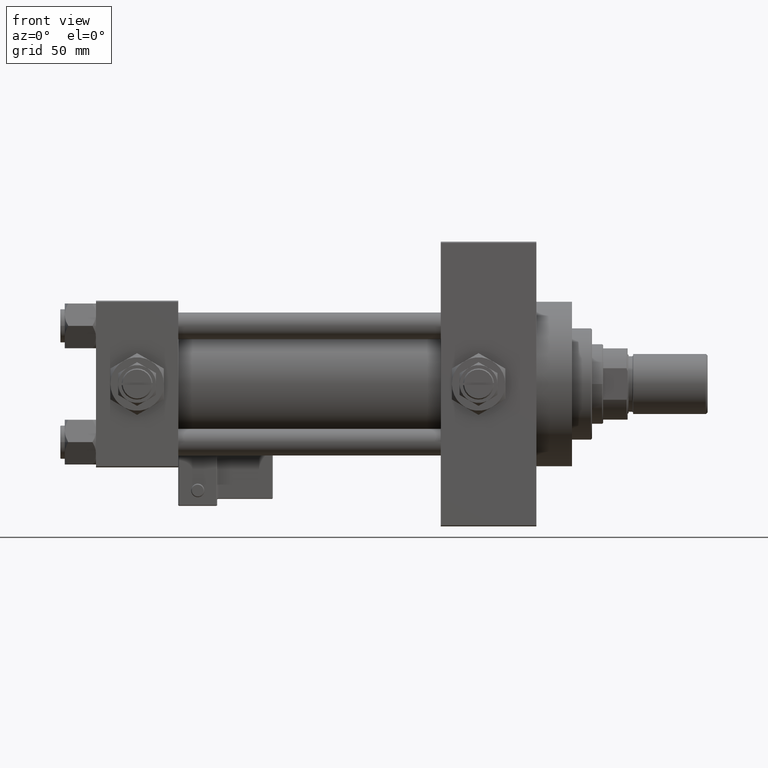
[diagram: clean part render]
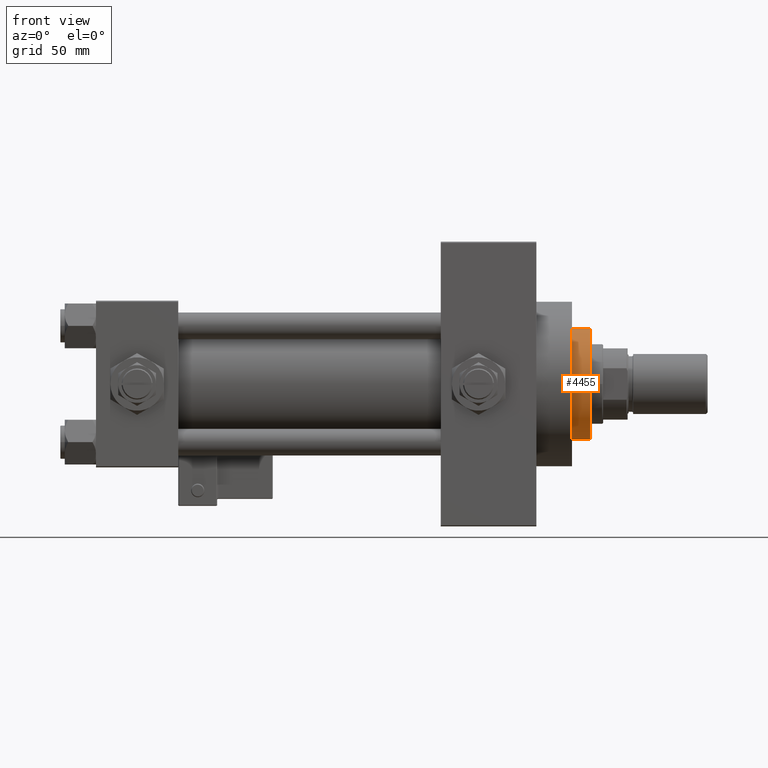
[diagram: same view with one face highlighted and labeled with its STEP entity id]
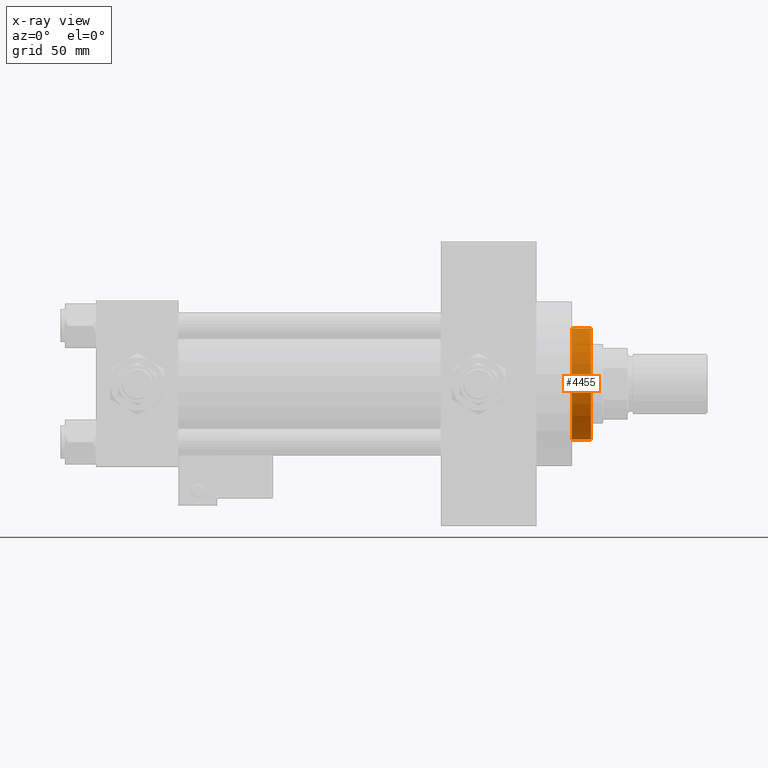
[diagram: x-ray of the same camera — body ghosted, the highlighted face saturated]
A machine part, front view. The second image highlights one B-rep face of the part: STEP entity #4455.
The next image is the same camera in x-ray: the body ghosted, the highlighted face saturated — about 0% of this face is hidden behind the body in this view.
In plain terms, the highlighted cylindrical surface (partial cylindrical patch) has radius 25 mm, axis along (-1, 0, 0).
Its self-contained STEP definition (entity closure, byte-faithful):
#961 = DIRECTION ( 'NONE',  ( 1.000000000000000000, 0.000000000000000000, 0.000000000000000000 ) ) ;
#1694 = CARTESIAN_POINT ( 'NONE',  ( 0.000000000000000000, 0.000000000000000000, 43.25999999999999801 ) ) ;
#4455 = ADVANCED_FACE ( 'NONE', ( #9857 ), #28211, .T. ) ;
#7199 = CARTESIAN_POINT ( 'NONE',  ( 0.000000000000000000, 0.000000000000000000, 52.25999999999999801 ) ) ;
#9857 = FACE_OUTER_BOUND ( 'NONE', #44496, .T. ) ;
#10176 = VERTEX_POINT ( 'NONE', #38787 ) ;
#10431 = CARTESIAN_POINT ( 'NONE',  ( 25.00000000000000000, 3.061616997868383043E-15, 51.76000000000001222 ) ) ;
#12278 = DIRECTION ( 'NONE',  ( 0.000000000000000000, 0.000000000000000000, -1.000000000000000000 ) ) ;
#13094 = CARTESIAN_POINT ( 'NONE',  ( -25.00000000000000000, 0.000000000000000000, 43.25999999999999801 ) ) ;
#14788 = CIRCLE ( 'NONE', #38237, 25.00000000000000000 ) ;
#16218 = CARTESIAN_POINT ( 'NONE',  ( 25.00000000000000000, 3.061616997868383043E-15, 52.25999999999999801 ) ) ;
#16231 = CARTESIAN_POINT ( 'NONE',  ( 0.000000000000000000, 0.000000000000000000, 51.76000000000001222 ) ) ;
#16687 = CARTESIAN_POINT ( 'NONE',  ( 25.00000000000000000, 3.061616997868383043E-15, 43.25999999999999801 ) ) ;
#17727 = DIRECTION ( 'NONE',  ( 0.000000000000000000, 0.000000000000000000, 1.000000000000000000 ) ) ;
#20471 = VECTOR ( 'NONE', #41321, 1000.000000000000000 ) ;
#20842 = CARTESIAN_POINT ( 'NONE',  ( -25.00000000000000000, 0.000000000000000000, 52.25999999999999801 ) ) ;
#23740 = DIRECTION ( 'NONE',  ( -1.000000000000000000, 0.000000000000000000, 0.000000000000000000 ) ) ;
#24430 = EDGE_CURVE ( 'NONE', #10176, #31381, #45511, .T. ) ;
#26203 = ORIENTED_EDGE ( 'NONE', *, *, #24430, .F. ) ;
#27220 = ORIENTED_EDGE ( 'NONE', *, *, #42998, .T. ) ;
#27994 = VERTEX_POINT ( 'NONE', #10431 ) ;
#28211 = CYLINDRICAL_SURFACE ( 'NONE', #48950, 25.00000000000000000 ) ;
#28801 = DIRECTION ( 'NONE',  ( -0.000000000000000000, -0.000000000000000000, -1.000000000000000000 ) ) ;
#31091 = EDGE_CURVE ( 'NONE', #27994, #41366, #48759, .T. ) ;
#31381 = VERTEX_POINT ( 'NONE', #13094 ) ;
#31473 = VECTOR ( 'NONE', #28801, 1000.000000000000000 ) ;
#32647 = ORIENTED_EDGE ( 'NONE', *, *, #47033, .T. ) ;
#33732 = DIRECTION ( 'NONE',  ( 1.000000000000000000, 0.000000000000000000, 0.000000000000000000 ) ) ;
#36348 = DIRECTION ( 'NONE',  ( -0.000000000000000000, -0.000000000000000000, -1.000000000000000000 ) ) ;
#38237 = AXIS2_PLACEMENT_3D ( 'NONE', #16231, #12278, #961 ) ;
#38414 = CIRCLE ( 'NONE', #41763, 25.00000000000000000 ) ;
#38787 = CARTESIAN_POINT ( 'NONE',  ( -25.00000000000000000, 0.000000000000000000, 51.76000000000001222 ) ) ;
#41321 = DIRECTION ( 'NONE',  ( -0.000000000000000000, -0.000000000000000000, -1.000000000000000000 ) ) ;
#41366 = VERTEX_POINT ( 'NONE', #16687 ) ;
#41763 = AXIS2_PLACEMENT_3D ( 'NONE', #1694, #17727, #33732 ) ;
#42998 = EDGE_CURVE ( 'NONE', #10176, #27994, #14788, .T. ) ;
#44355 = ORIENTED_EDGE ( 'NONE', *, *, #31091, .T. ) ;
#44496 = EDGE_LOOP ( 'NONE', ( #27220, #44355, #32647, #26203 ) ) ;
#45511 = LINE ( 'NONE', #20842, #20471 ) ;
#47033 = EDGE_CURVE ( 'NONE', #41366, #31381, #38414, .T. ) ;
#48759 = LINE ( 'NONE', #16218, #31473 ) ;
#48950 = AXIS2_PLACEMENT_3D ( 'NONE', #7199, #36348, #23740 ) ;